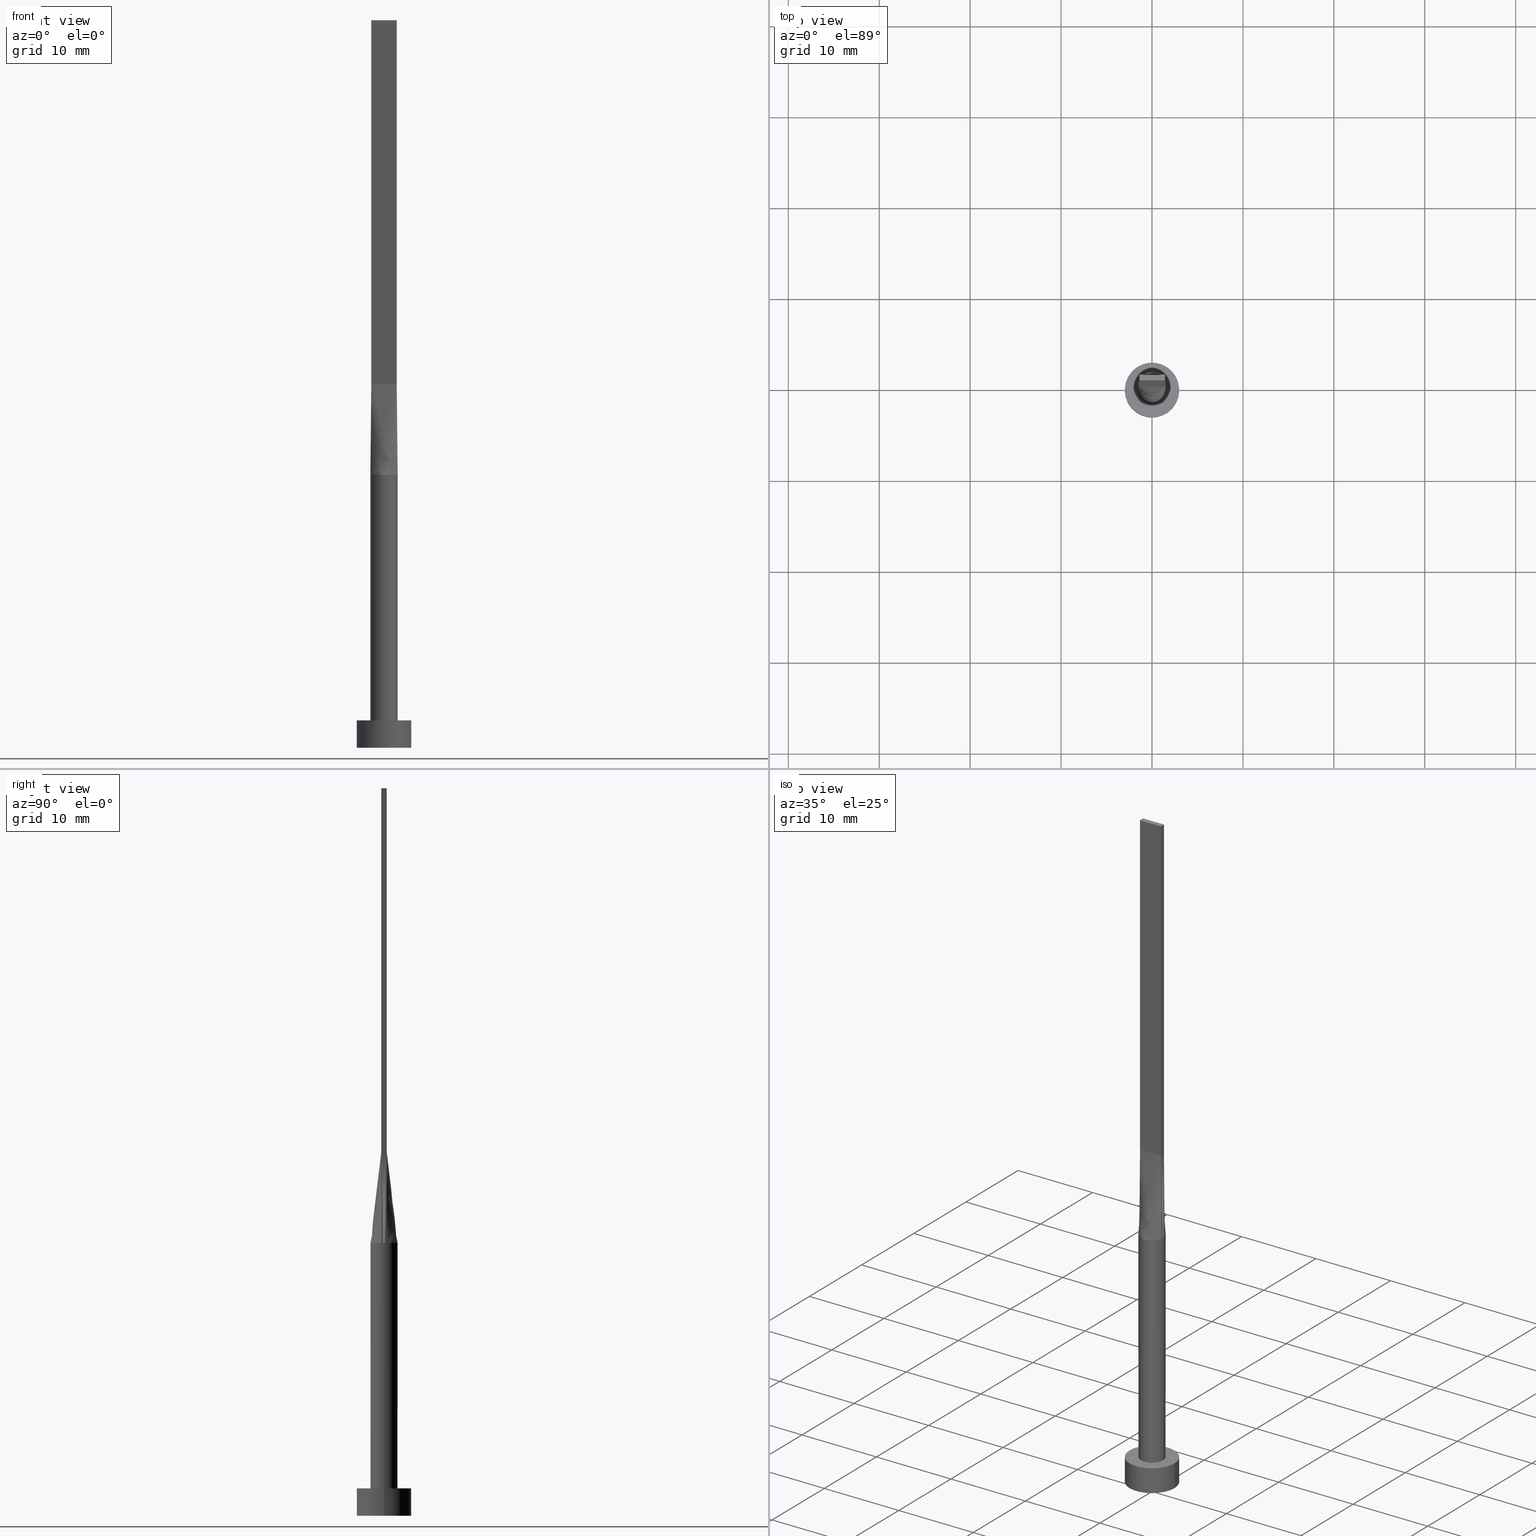
[diagram: canonical four-view strip — front | top / right | iso, engineering-drawing reading convention]
A machine part, canonical four-view strip (front | top / right | iso — engineering-drawing reading convention). The complete STEP part file that produces these views, byte-faithful:
ISO-10303-21;
HEADER;
FILE_DESCRIPTION (( 'STEP AP203' ),
    '1' );
FILE_NAME ('b24c.STEP',
    '2026-02-12T09:00:48',
    ( '' ),
    ( '' ),
    'SwSTEP 2.0',
    'SolidWorks 2019',
    '' );
FILE_SCHEMA (( 'CONFIG_CONTROL_DESIGN' ));
ENDSEC;

DATA;
#1 = CIRCLE ( 'NONE', #76, 1.500000000000000222 ) ;
#2 = CARTESIAN_POINT ( 'NONE',  ( 1.499815225192203672, 3.473831651285826596E-16, 30.00000000000000000 ) ) ;
#3 = LINE ( 'NONE', #541, #188 ) ;
#4 = APPROVAL ( #505, 'NEUR�EN�' ) ;
#5 = PERSON_AND_ORGANIZATION ( #29, #129 ) ;
#6 = CARTESIAN_POINT ( 'NONE',  ( -1.399999999999999689, 0.3000000000000002109, 80.00000000000000000 ) ) ;
#7 = CYLINDRICAL_SURFACE ( 'NONE', #391, 1.500000000000000222 ) ;
#8 = VERTEX_POINT ( 'NONE', #163 ) ;
#9 = DATE_AND_TIME ( #460, #92 ) ;
#10 = CARTESIAN_POINT ( 'NONE',  ( 1.500000000000000222, 1.836970198721030181E-16, 30.00000000000000000 ) ) ;
#11 = CARTESIAN_POINT ( 'NONE',  ( 0.4035854070682468042, -1.457676878506885210, 30.00000000000000355 ) ) ;
#12 = DIRECTION ( 'NONE',  ( 0.000000000000000000, 0.000000000000000000, 1.000000000000000000 ) ) ;
#13 = ORIENTED_EDGE ( 'NONE', *, *, #57, .T. ) ;
#14 = CIRCLE ( 'NONE', #216, 1.500000000000000222 ) ;
#15 = APPROVAL_PERSON_ORGANIZATION ( #185, #407, #277 ) ;
#16 = FACE_OUTER_BOUND ( 'NONE', #404, .T. ) ;
#17 = CARTESIAN_POINT ( 'NONE',  ( 0.1166666666666671959, -0.2999999999999997113, 39.99999999999999289 ) ) ;
#18 = DIRECTION ( 'NONE',  ( -1.000000000000000000, 0.000000000000000000, 0.000000000000000000 ) ) ;
#19 = ORIENTED_EDGE ( 'NONE', *, *, #304, .T. ) ;
#20 = ADVANCED_FACE ( 'NONE', ( #118 ), #46, .T. ) ;
#21 = DIRECTION ( 'NONE',  ( 0.000000000000000000, 0.000000000000000000, 1.000000000000000000 ) ) ;
#22 = VERTEX_POINT ( 'NONE', #295 ) ;
#23 = ORIENTED_EDGE ( 'NONE', *, *, #432, .T. ) ;
#24 = CARTESIAN_POINT ( 'NONE',  ( 1.283333333333333437, 0.3000000000000002109, 40.00000000000000000 ) ) ;
#25 = CC_DESIGN_PERSON_AND_ORGANIZATION_ASSIGNMENT ( #452, #45, ( #256 ) ) ;
#26 = CARTESIAN_POINT ( 'NONE',  ( 1.466825456746648992, 0.3143198820638501978, 30.00000000000000000 ) ) ;
#27 = CARTESIAN_POINT ( 'NONE',  ( -1.399999999999999689, 0.3000000000000002109, 40.00000000000000000 ) ) ;
#28 = ADVANCED_FACE ( 'NONE', ( #326 ), #504, .T. ) ;
#29 = PERSON ( 'NEUR�EN�', 'NEUR�EN�', 'NEUR�EN�', ('NEUR�EN�'), ('NEUR�EN�'), ('NEUR�EN�') ) ;
#30 = VERTEX_POINT ( 'NONE', #244 ) ;
#31 = CARTESIAN_POINT ( 'NONE',  ( 1.261673556793541540, 0.8246322331683844098, 29.99999999999998579 ) ) ;
#32 = AXIS2_PLACEMENT_3D ( 'NONE', #175, #485, #342 ) ;
#33 = ADVANCED_FACE ( 'NONE', ( #398 ), #525, .F. ) ;
#34 = FACE_OUTER_BOUND ( 'NONE', #125, .T. ) ;
#35 = ORIENTED_EDGE ( 'NONE', *, *, #258, .F. ) ;
#36 = CARTESIAN_POINT ( 'NONE',  ( 1.398339371956842880, 0.5625704264602660043, 29.99999999999999645 ) ) ;
#37 = DIRECTION ( 'NONE',  ( -0.000000000000000000, -0.000000000000000000, -1.000000000000000000 ) ) ;
#38 = ORIENTED_EDGE ( 'NONE', *, *, #383, .F. ) ;
#39 = CARTESIAN_POINT ( 'NONE',  ( 0.7614511870148451544, 1.306864626778804883, 30.00000000000000711 ) ) ;
#40 = ORIENTED_EDGE ( 'NONE', *, *, #214, .F. ) ;
#41 =( GEOMETRIC_REPRESENTATION_CONTEXT ( 3 ) GLOBAL_UNCERTAINTY_ASSIGNED_CONTEXT ( ( #422 ) ) GLOBAL_UNIT_ASSIGNED_CONTEXT ( ( #419, #372, #406 ) ) REPRESENTATION_CONTEXT ( 'NONE', 'WORKASPACE' ) );
#42 = PRODUCT_RELATED_PRODUCT_CATEGORY ( 'detail', '', ( #357 ) ) ;
#43 = EDGE_LOOP ( 'NONE', ( #205, #306, #133, #379, #442, #116 ) ) ;
#44 = CARTESIAN_POINT ( 'NONE',  ( 0.000000000000000000, 0.000000000000000000, 0.000000000000000000 ) ) ;
#45 = PERSON_AND_ORGANIZATION_ROLE ( 'classification_officer' ) ;
#46 = B_SPLINE_SURFACE_WITH_KNOTS ( 'NONE', 3, 1, ( 
 ( #478, #428 ),
 ( #339, #516 ),
 ( #299, #292 ),
 ( #159, #148 ),
 ( #470, #335 ),
 ( #66, #113 ) ),
 .UNSPECIFIED., .F., .F., .F.,
 ( 4, 2, 4 ),
 ( 2, 2 ),
 ( 0.000000000000000000, 0.5000000000000000000, 1.000000000000000000 ),
 ( 0.000000000000000000, 1.000000000000000000 ),
 .UNSPECIFIED. ) ;
#47 = MANIFOLD_SOLID_BREP ( 'P�idat vysunut�m5', #309 ) ;
#48 = CARTESIAN_POINT ( 'NONE',  ( 0.000000000000000000, 0.000000000000000000, 30.00000000000000000 ) ) ;
#49 = ADVANCED_FACE ( 'NONE', ( #352 ), #441, .F. ) ;
#50 = DIRECTION ( 'NONE',  ( 0.000000000000000000, 0.000000000000000000, 1.000000000000000000 ) ) ;
#51 = CC_DESIGN_SECURITY_CLASSIFICATION ( #256, ( #149 ) ) ;
#52 = DESIGN_CONTEXT ( 'detailed design', #94, 'design' ) ;
#53 = CALENDAR_DATE ( 2026, 12, 2 ) ;
#54 = AXIS2_PLACEMENT_3D ( 'NONE', #106, #287, #465 ) ;
#55 = DIRECTION ( 'NONE',  ( -0.006670206908340766024, -0.001429330051787238700, 0.9999767324070110153 ) ) ;
#56 = DIRECTION ( 'NONE',  ( -1.000000000000000000, 0.000000000000000000, 0.000000000000000000 ) ) ;
#57 = EDGE_CURVE ( 'NONE', #417, #224, #576, .T. ) ;
#58 = APPROVAL_ROLE ( '' ) ;
#59 = CARTESIAN_POINT ( 'NONE',  ( -1.283333333333333215, -0.2999999999999996003, 39.99999999999999289 ) ) ;
#60 = LINE ( 'NONE', #323, #114 ) ;
#61 = DIRECTION ( 'NONE',  ( 1.000000000000000000, 0.000000000000000000, 0.000000000000000000 ) ) ;
#62 = ORIENTED_EDGE ( 'NONE', *, *, #80, .T. ) ;
#63 = DIRECTION ( 'NONE',  ( 0.000000000000000000, 0.000000000000000000, 1.000000000000000000 ) ) ;
#64 = LINE ( 'NONE', #285, #235 ) ;
#65 = DIRECTION ( 'NONE',  ( 1.000000000000000000, 0.000000000000000000, 0.000000000000000000 ) ) ;
#66 = CARTESIAN_POINT ( 'NONE',  ( -1.466703621116114409, -0.3142936330963096436, 30.00000000000000000 ) ) ;
#67 = CARTESIAN_POINT ( 'NONE',  ( 1.433351810558057160, 0.3071468165481550106, 35.00000000000000000 ) ) ;
#68 = CARTESIAN_POINT ( 'NONE',  ( 1.399999999999999911, -0.2999999999999997669, 40.00000000000000000 ) ) ;
#69 = VECTOR ( 'NONE', #488, 1000.000000000000000 ) ;
#70 = VECTOR ( 'NONE', #411, 1000.000000000000000 ) ;
#71 = ORIENTED_EDGE ( 'NONE', *, *, #117, .T. ) ;
#72 = CARTESIAN_POINT ( 'NONE',  ( -0.1166666666666661550, -0.2999999999999997669, 40.00000000000000000 ) ) ;
#73 = VERTEX_POINT ( 'NONE', #269 ) ;
#74 = ADVANCED_FACE ( 'NONE', ( #310, #75 ), #267, .T. ) ;
#75 = FACE_OUTER_BOUND ( 'NONE', #526, .T. ) ;
#76 = AXIS2_PLACEMENT_3D ( 'NONE', #291, #286, #65 ) ;
#77 = CARTESIAN_POINT ( 'NONE',  ( -1.261673556793542872, 0.8246322331683846318, 30.00000000000000711 ) ) ;
#78 = CARTESIAN_POINT ( 'NONE',  ( -0.9173979595380679086, 1.199399801402030397, 30.00000000000000000 ) ) ;
#79 = CARTESIAN_POINT ( 'NONE',  ( -0.8166666666666656527, 0.3000000000000002665, 40.00000000000000000 ) ) ;
#80 = EDGE_CURVE ( 'NONE', #8, #73, #444, .T. ) ;
#81 = DIRECTION ( 'NONE',  ( 0.000000000000000000, -1.000000000000000000, 0.000000000000000000 ) ) ;
#82 = EDGE_LOOP ( 'NONE', ( #249, #399, #549, #134 ) ) ;
#83 = CC_DESIGN_APPROVAL ( #131, ( #149 ) ) ;
#84 = DIRECTION ( 'NONE',  ( 0.000000000000000000, 0.000000000000000000, 1.000000000000000000 ) ) ;
#85 = DIRECTION ( 'NONE',  ( -1.000000000000000000, 5.808225924029488744E-17, 0.000000000000000000 ) ) ;
#86 = ORIENTED_EDGE ( 'NONE', *, *, #57, .F. ) ;
#87 = APPLICATION_CONTEXT ( 'configuration controlled 3d designs of mechanical parts and assemblies' ) ;
#88 = CARTESIAN_POINT ( 'NONE',  ( 1.441093865018553410, 0.4338058282182615244, 30.00000000000000711 ) ) ;
#89 = VERTEX_POINT ( 'NONE', #170 ) ;
#90 = ORIENTED_EDGE ( 'NONE', *, *, #258, .T. ) ;
#91 = CARTESIAN_POINT ( 'NONE',  ( 0.7614511870148451544, -1.306864626778804439, 30.00000000000001066 ) ) ;
#92 = LOCAL_TIME ( 10, 0, 48.00000000000000000, #499 ) ;
#93 = PERSON_AND_ORGANIZATION_ROLE ( 'design_supplier' ) ;
#94 = APPLICATION_CONTEXT ( 'configuration controlled 3d designs of mechanical parts and assemblies' ) ;
#95 = ADVANCED_FACE ( 'NONE', ( #34 ), #536, .T. ) ;
#96 = APPROVAL_STATUS ( 'not_yet_approved' ) ;
#97 = DIRECTION ( 'NONE',  ( 0.000000000000000000, 0.000000000000000000, 1.000000000000000000 ) ) ;
#98 = APPROVAL_ROLE ( '' ) ;
#99 = LINE ( 'NONE', #107, #167 ) ;
#100 = CARTESIAN_POINT ( 'NONE',  ( 1.466854622690809462, -0.3143260906982852099, 30.00000000000000000 ) ) ;
#101 = AXIS2_PLACEMENT_3D ( 'NONE', #467, #63, #156 ) ;
#102 = APPROVAL_STATUS ( 'not_yet_approved' ) ;
#103 = FACE_OUTER_BOUND ( 'NONE', #183, .T. ) ;
#104 = CARTESIAN_POINT ( 'NONE',  ( 0.9333333333333337922, -0.2999999999999997113, 39.99999999999999289 ) ) ;
#105 = CARTESIAN_POINT ( 'NONE',  ( -1.399999999999999689, 0.3000000000000002109, 40.00000000000000000 ) ) ;
#106 = CARTESIAN_POINT ( 'NONE',  ( 0.000000000000000000, 0.000000000000000000, 30.00000000000000000 ) ) ;
#107 = CARTESIAN_POINT ( 'NONE',  ( -1.433351810558057160, 0.3071468165481554546, 35.00000000000000000 ) ) ;
#108 = CARTESIAN_POINT ( 'NONE',  ( 1.399999999999999911, -0.2999999999999997669, 40.00000000000000000 ) ) ;
#109 = DIRECTION ( 'NONE',  ( 1.000000000000000000, 0.000000000000000000, 0.000000000000000000 ) ) ;
#110 = EDGE_LOOP ( 'NONE', ( #330, #271 ) ) ;
#111 = LINE ( 'NONE', #414, #409 ) ;
#112 = CARTESIAN_POINT ( 'NONE',  ( -0.2333333333333328374, -0.2999999999999997113, 39.99999999999999289 ) ) ;
#113 = CARTESIAN_POINT ( 'NONE',  ( -1.399999999999999911, -0.2999999999999996558, 40.00000000000000000 ) ) ;
#114 = VECTOR ( 'NONE', #502, 1000.000000000000000 ) ;
#115 = CARTESIAN_POINT ( 'NONE',  ( 0.8166666666666669849, -0.2999999999999997113, 39.99999999999999289 ) ) ;
#116 = ORIENTED_EDGE ( 'NONE', *, *, #187, .F. ) ;
#117 = EDGE_CURVE ( 'NONE', #421, #160, #265, .T. ) ;
#118 = FACE_OUTER_BOUND ( 'NONE', #220, .T. ) ;
#119 = B_SPLINE_CURVE_WITH_KNOTS ( 'NONE', 3,
 ( #26, #168, #36, #31, #122, #345, #397, #218, #481, #572, #212, #213, #78, #259, #437, #520, #568, #172 ),
 .UNSPECIFIED., .F., .F.,
 ( 4, 2, 2, 2, 2, 2, 2, 2, 4 ),
 ( 0.000000000000000000, 0.1249999999999999445, 0.2499999999999998890, 0.3749999999999998890, 0.4999999999999998890, 0.6249999999999998890, 0.7500000000000000000, 0.8749999999999998890, 1.000000000000000000 ),
 .UNSPECIFIED. ) ;
#120 = CARTESIAN_POINT ( 'NONE',  ( -1.441093865018553410, 0.4338058282182611913, 29.99999999999999289 ) ) ;
#121 = CIRCLE ( 'NONE', #440, 3.000000000000000444 ) ;
#122 = CARTESIAN_POINT ( 'NONE',  ( 1.167251067653077401, 0.9579686032593092149, 30.00000000000000355 ) ) ;
#123 = DIRECTION ( 'NONE',  ( -3.614007241618349264E-16, -1.000000000000000000, 0.000000000000000000 ) ) ;
#124 = CARTESIAN_POINT ( 'NONE',  ( -1.399999999999999911, -0.2999999999999996003, 80.00000000000000000 ) ) ;
#125 = EDGE_LOOP ( 'NONE', ( #382, #268, #35, #38 ) ) ;
#126 = DIRECTION ( 'NONE',  ( 0.000000000000000000, 0.000000000000000000, 1.000000000000000000 ) ) ;
#127 = DIRECTION ( 'NONE',  ( 1.000000000000000000, 0.000000000000000000, -0.000000000000000000 ) ) ;
#128 = ORIENTED_EDGE ( 'NONE', *, *, #432, .F. ) ;
#129 = ORGANIZATION ( 'NEUR�EN�', 'NEUR�EN�', '' ) ;
#130 = AXIS2_PLACEMENT_3D ( 'NONE', #529, #81, #566 ) ;
#131 = APPROVAL ( #102, 'NEUR�EN�' ) ;
#132 = CARTESIAN_POINT ( 'NONE',  ( -1.500000000000000222, 0.000000000000000000, 30.00000000000000000 ) ) ;
#133 = ORIENTED_EDGE ( 'NONE', *, *, #349, .T. ) ;
#134 = ORIENTED_EDGE ( 'NONE', *, *, #354, .F. ) ;
#135 = LOCAL_TIME ( 10, 0, 48.00000000000000000, #232 ) ;
#136 = EDGE_CURVE ( 'NONE', #171, #174, #275, .T. ) ;
#137 = AXIS2_PLACEMENT_3D ( 'NONE', #443, #84, #482 ) ;
#138 = VECTOR ( 'NONE', #562, 1000.000000000000000 ) ;
#139 = PERSON_AND_ORGANIZATION ( #29, #129 ) ;
#140 = FACE_OUTER_BOUND ( 'NONE', #559, .T. ) ;
#141 = APPROVAL_DATE_TIME ( #144, #4 ) ;
#142 = DIRECTION ( 'NONE',  ( -0.000000000000000000, -0.000000000000000000, -1.000000000000000000 ) ) ;
#143 = CARTESIAN_POINT ( 'NONE',  ( 1.399999999999999689, 0.3000000000000002109, 80.00000000000000000 ) ) ;
#144 = DATE_AND_TIME ( #535, #308 ) ;
#145 = FACE_OUTER_BOUND ( 'NONE', #567, .T. ) ;
#146 = DIRECTION ( 'NONE',  ( 1.000000000000000000, -3.614007241618349264E-16, 0.000000000000000000 ) ) ;
#147 = CARTESIAN_POINT ( 'NONE',  ( 0.000000000000000000, 0.000000000000000000, 80.00000000000000000 ) ) ;
#148 = CARTESIAN_POINT ( 'NONE',  ( -1.399999999999999689, -0.09999999999999960310, 39.99999999999999289 ) ) ;
#149 = PRODUCT_DEFINITION_FORMATION_WITH_SPECIFIED_SOURCE ( 'LIBOVOLN�', '', #357, .NOT_KNOWN. ) ;
#150 = APPLICATION_PROTOCOL_DEFINITION ( 'international standard', 'config_control_design', 1994, #94 ) ;
#151 = CARTESIAN_POINT ( 'NONE',  ( 1.499630450384406899, -0.1059273043530333108, 30.00000000000000000 ) ) ;
#152 = CARTESIAN_POINT ( 'NONE',  ( 0.5833333333333337034, -0.2999999999999997113, 39.99999999999999289 ) ) ;
#153 = EDGE_CURVE ( 'NONE', #356, #30, #435, .T. ) ;
#154 = CARTESIAN_POINT ( 'NONE',  ( 0.000000000000000000, 0.000000000000000000, 0.000000000000000000 ) ) ;
#155 = ORIENTED_EDGE ( 'NONE', *, *, #181, .F. ) ;
#156 = DIRECTION ( 'NONE',  ( 1.000000000000000000, 0.000000000000000000, -0.000000000000000000 ) ) ;
#157 = CARTESIAN_POINT ( 'NONE',  ( -1.166666666666666297, -0.2999999999999996003, 39.99999999999999289 ) ) ;
#158 = PLANE ( 'NONE',  #389 ) ;
#159 = CARTESIAN_POINT ( 'NONE',  ( -1.499630450384406899, -0.1059273043530328529, 30.00000000000000000 ) ) ;
#160 = VERTEX_POINT ( 'NONE', #303 ) ;
#161 = EDGE_CURVE ( 'NONE', #160, #530, #215, .T. ) ;
#162 = VECTOR ( 'NONE', #373, 1000.000000000000000 ) ;
#163 = CARTESIAN_POINT ( 'NONE',  ( -1.499815225192203672, -3.718617114388451945E-16, 30.00000000000000000 ) ) ;
#164 = EDGE_CURVE ( 'NONE', #73, #89, #475, .T. ) ;
#165 = CARTESIAN_POINT ( 'NONE',  ( -1.398339371956843102, 0.5625704264602656712, 29.99999999999999289 ) ) ;
#166 = CARTESIAN_POINT ( 'NONE',  ( 3.000000000000000444, 3.673940397442060361E-16, 3.000000000000000000 ) ) ;
#167 = VECTOR ( 'NONE', #251, 1000.000000000000114 ) ;
#168 = CARTESIAN_POINT ( 'NONE',  ( 1.441093865018553410, 0.4338058282182615244, 30.00000000000000711 ) ) ;
#169 = ADVANCED_BREP_SHAPE_REPRESENTATION ( 'b24c', ( #47, #343 ), #41 ) ;
#170 = CARTESIAN_POINT ( 'NONE',  ( 1.500000000000000222, 1.836970198721030181E-16, 3.000000000000000000 ) ) ;
#171 = VERTEX_POINT ( 'NONE', #439 ) ;
#172 = CARTESIAN_POINT ( 'NONE',  ( -1.466842056764351865, 0.3143233427268645186, 30.00000000000000000 ) ) ;
#173 = CARTESIAN_POINT ( 'NONE',  ( 0.4035854070682468042, 1.457676878506885654, 30.00000000000000000 ) ) ;
#174 = VERTEX_POINT ( 'NONE', #166 ) ;
#175 = CARTESIAN_POINT ( 'NONE',  ( 0.000000000000000000, 0.000000000000000000, 3.000000000000000000 ) ) ;
#176 = CC_DESIGN_PERSON_AND_ORGANIZATION_ASSIGNMENT ( #319, #283, ( #357 ) ) ;
#177 = CARTESIAN_POINT ( 'NONE',  ( -1.399999999999999911, -0.2999999999999996003, 80.00000000000000000 ) ) ;
#178 = ORIENTED_EDGE ( 'NONE', *, *, #318, .T. ) ;
#179 = AXIS2_PLACEMENT_3D ( 'NONE', #497, #280, #458 ) ;
#180 = AXIS2_PLACEMENT_3D ( 'NONE', #387, #301, #260 ) ;
#181 = EDGE_CURVE ( 'NONE', #224, #200, #480, .T. ) ;
#182 = CARTESIAN_POINT ( 'NONE',  ( 0.2021039475585061640, 1.500000000000000222, 30.00000000000000711 ) ) ;
#183 = EDGE_LOOP ( 'NONE', ( #353, #416 ) ) ;
#184 = CARTESIAN_POINT ( 'NONE',  ( 0.2333333333333338366, -0.2999999999999997113, 39.99999999999999289 ) ) ;
#185 = PERSON_AND_ORGANIZATION ( #29, #129 ) ;
#186 = ADVANCED_FACE ( 'NONE', ( #257 ), #307, .T. ) ;
#187 = EDGE_CURVE ( 'NONE', #30, #22, #119, .T. ) ;
#188 = VECTOR ( 'NONE', #418, 1000.000000000000000 ) ;
#189 = APPLICATION_PROTOCOL_DEFINITION ( 'international standard', 'config_control_design', 1994, #87 ) ;
#190 = CARTESIAN_POINT ( 'NONE',  ( 1.488654840628309328, -0.2118546087060664274, 30.00000000000000000 ) ) ;
#191 = LINE ( 'NONE', #508, #162 ) ;
#192 = PERSON_AND_ORGANIZATION_ROLE ( 'creator' ) ;
#193 = CARTESIAN_POINT ( 'NONE',  ( 1.399999999999999689, 0.3000000000000002109, 80.00000000000000000 ) ) ;
#194 = LINE ( 'NONE', #105, #70 ) ;
#195 = ORIENTED_EDGE ( 'NONE', *, *, #392, .F. ) ;
#196 = CC_DESIGN_DATE_AND_TIME_ASSIGNMENT ( #9, #466, ( #238 ) ) ;
#197 = DIRECTION ( 'NONE',  ( 1.000000000000000000, 0.000000000000000000, 0.000000000000000000 ) ) ;
#198 = CARTESIAN_POINT ( 'NONE',  ( -1.398339371956842880, -0.5625704264602655602, 29.99999999999999289 ) ) ;
#199 = CARTESIAN_POINT ( 'NONE',  ( 1.399999999999999911, -0.2999999999999997669, 80.00000000000000000 ) ) ;
#200 = VERTEX_POINT ( 'NONE', #143 ) ;
#201 = CARTESIAN_POINT ( 'NONE',  ( 1.399999999999999911, -0.2999999999999997669, 40.00000000000000000 ) ) ;
#202 = CARTESIAN_POINT ( 'NONE',  ( -0.5833333333333329263, -0.2999999999999996558, 39.99999999999999289 ) ) ;
#203 = CARTESIAN_POINT ( 'NONE',  ( 0.000000000000000000, 0.000000000000000000, 3.000000000000000000 ) ) ;
#204 = SHAPE_DEFINITION_REPRESENTATION ( #274, #169 ) ;
#205 = ORIENTED_EDGE ( 'NONE', *, *, #153, .F. ) ;
#206 = PLANE ( 'NONE',  #449 ) ;
#207 = ORIENTED_EDGE ( 'NONE', *, *, #281, .T. ) ;
#208 = VERTEX_POINT ( 'NONE', #100 ) ;
#209 = VECTOR ( 'NONE', #580, 1000.000000000000114 ) ;
#210 = AXIS2_PLACEMENT_3D ( 'NONE', #395, #490, #127 ) ;
#211 = CARTESIAN_POINT ( 'NONE',  ( 1.261673556793541540, 0.8246322331683844098, 29.99999999999998579 ) ) ;
#212 = CARTESIAN_POINT ( 'NONE',  ( -0.4035854070682471928, 1.457676878506885432, 30.00000000000000711 ) ) ;
#213 = CARTESIAN_POINT ( 'NONE',  ( -0.7614511870148460426, 1.306864626778804661, 30.00000000000001776 ) ) ;
#214 = EDGE_CURVE ( 'NONE', #200, #474, #469, .T. ) ;
#215 = LINE ( 'NONE', #517, #138 ) ;
#216 = AXIS2_PLACEMENT_3D ( 'NONE', #234, #97, #61 ) ;
#217 = ORIENTED_EDGE ( 'NONE', *, *, #300, .F. ) ;
#218 = CARTESIAN_POINT ( 'NONE',  ( 0.4035854070682468042, 1.457676878506885654, 30.00000000000000000 ) ) ;
#219 = CARTESIAN_POINT ( 'NONE',  ( 0.9333333333333340143, 0.3000000000000002109, 39.99999999999999289 ) ) ;
#220 = EDGE_LOOP ( 'NONE', ( #491, #431, #381, #545, #195 ) ) ;
#221 = EDGE_CURVE ( 'NONE', #228, #522, #250, .T. ) ;
#222 = CARTESIAN_POINT ( 'NONE',  ( -1.167251067653078289, 0.9579686032593087708, 30.00000000000001776 ) ) ;
#223 = CARTESIAN_POINT ( 'NONE',  ( 1.399999999999999689, 0.3000000000000002109, 40.00000000000000000 ) ) ;
#224 = VERTEX_POINT ( 'NONE', #243 ) ;
#225 = CARTESIAN_POINT ( 'NONE',  ( 1.466703621116114409, 0.3142936330963102542, 30.00000000000000000 ) ) ;
#226 = ORIENTED_EDGE ( 'NONE', *, *, #164, .T. ) ;
#227 = VECTOR ( 'NONE', #363, 1000.000000000000000 ) ;
#228 = VERTEX_POINT ( 'NONE', #427 ) ;
#229 = LINE ( 'NONE', #332, #209 ) ;
#230 = ADVANCED_FACE ( 'NONE', ( #140 ), #7, .T. ) ;
#231 = COORDINATED_UNIVERSAL_TIME_OFFSET ( 1, 0, .AHEAD. ) ;
#232 = COORDINATED_UNIVERSAL_TIME_OFFSET ( 1, 0, .AHEAD. ) ;
#233 = DIRECTION ( 'NONE',  ( 1.000000000000000000, 3.552713678800500929E-15, 0.000000000000000000 ) ) ;
#234 = CARTESIAN_POINT ( 'NONE',  ( 0.000000000000000000, 0.000000000000000000, 3.000000000000000000 ) ) ;
#235 = VECTOR ( 'NONE', #405, 1000.000000000000000 ) ;
#236 = CARTESIAN_POINT ( 'NONE',  ( 1.399999999999999689, -0.09999999999999985290, 39.99999999999999289 ) ) ;
#237 = DIRECTION ( 'NONE',  ( 1.000000000000000000, 0.000000000000000000, 0.000000000000000000 ) ) ;
#238 = PRODUCT_DEFINITION ( 'NEZN�M�', '', #149, #52 ) ;
#239 = ORIENTED_EDGE ( 'NONE', *, *, #556, .T. ) ;
#240 = SECURITY_CLASSIFICATION_LEVEL ( 'unclassified' ) ;
#241 = CARTESIAN_POINT ( 'NONE',  ( 1.466703621116114409, -0.3142936330963101987, 30.00000000000000000 ) ) ;
#242 = CARTESIAN_POINT ( 'NONE',  ( -1.261673556793542206, -0.8246322331683838547, 29.99999999999998934 ) ) ;
#243 = CARTESIAN_POINT ( 'NONE',  ( 1.399999999999999911, -0.2999999999999997669, 80.00000000000000000 ) ) ;
#244 = CARTESIAN_POINT ( 'NONE',  ( 1.466825456746648992, 0.3143198820638501978, 30.00000000000000000 ) ) ;
#245 = DIRECTION ( 'NONE',  ( -0.006670206908340743472, -0.001429330051787282068, -0.9999767324070110153 ) ) ;
#246 = DIRECTION ( 'NONE',  ( 1.000000000000000000, 0.000000000000000000, 0.000000000000000000 ) ) ;
#247 = CARTESIAN_POINT ( 'NONE',  ( 1.399999999999999689, 0.3000000000000002109, 80.00000000000000000 ) ) ;
#248 = VECTOR ( 'NONE', #511, 1000.000000000000000 ) ;
#249 = ORIENTED_EDGE ( 'NONE', *, *, #318, .F. ) ;
#250 = CIRCLE ( 'NONE', #565, 3.000000000000000444 ) ;
#251 = DIRECTION ( 'NONE',  ( 0.006670206908340743472, -0.001429330051787325653, 0.9999767324070110153 ) ) ;
#252 = CARTESIAN_POINT ( 'NONE',  ( -0.4035854070682473038, -1.457676878506884988, 30.00000000000001066 ) ) ;
#253 = ORIENTED_EDGE ( 'NONE', *, *, #136, .T. ) ;
#254 = ORIENTED_EDGE ( 'NONE', *, *, #281, .F. ) ;
#255 = CARTESIAN_POINT ( 'NONE',  ( 1.166666666666666963, 0.3000000000000002109, 40.00000000000000000 ) ) ;
#256 = SECURITY_CLASSIFICATION ( '', '', #240 ) ;
#257 = FACE_OUTER_BOUND ( 'NONE', #570, .T. ) ;
#258 = EDGE_CURVE ( 'NONE', #270, #421, #194, .T. ) ;
#259 = CARTESIAN_POINT ( 'NONE',  ( -1.167251067653078289, 0.9579686032593087708, 30.00000000000001776 ) ) ;
#260 = DIRECTION ( 'NONE',  ( 1.000000000000000000, 0.000000000000000000, 0.000000000000000000 ) ) ;
#261 = VECTOR ( 'NONE', #142, 1000.000000000000000 ) ;
#262 = ADVANCED_FACE ( 'NONE', ( #420 ), #552, .F. ) ;
#263 = CARTESIAN_POINT ( 'NONE',  ( -0.4666666666666651198, 0.3000000000000001554, 39.99999999999999289 ) ) ;
#264 = EDGE_LOOP ( 'NONE', ( #71, #338, #477, #207 ) ) ;
#265 = LINE ( 'NONE', #523, #528 ) ;
#266 = EDGE_CURVE ( 'NONE', #224, #530, #191, .T. ) ;
#267 = PLANE ( 'NONE',  #210 ) ;
#268 = ORIENTED_EDGE ( 'NONE', *, *, #392, .T. ) ;
#269 = CARTESIAN_POINT ( 'NONE',  ( -1.500000000000000222, 0.000000000000000000, 3.000000000000000000 ) ) ;
#270 = VERTEX_POINT ( 'NONE', #498 ) ;
#271 = ORIENTED_EDGE ( 'NONE', *, *, #349, .F. ) ;
#272 = LOCAL_TIME ( 10, 0, 48.00000000000000000, #231 ) ;
#273 = CARTESIAN_POINT ( 'NONE',  ( 1.166666666666666963, -0.2999999999999997113, 39.99999999999999289 ) ) ;
#274 = PRODUCT_DEFINITION_SHAPE ( 'NONE', 'NONE',  #238 ) ;
#275 = CIRCLE ( 'NONE', #137, 3.000000000000000444 ) ;
#276 = MECHANICAL_CONTEXT ( 'NONE', #87, 'mechanical' ) ;
#277 = APPROVAL_ROLE ( '' ) ;
#278 = CARTESIAN_POINT ( 'NONE',  ( -1.466837926445876628, -0.3143226152917824034, 30.00000000000000000 ) ) ;
#279 = PERSON_AND_ORGANIZATION_ROLE ( 'creator' ) ;
#280 = DIRECTION ( 'NONE',  ( -0.000000000000000000, -0.000000000000000000, -1.000000000000000000 ) ) ;
#281 = EDGE_CURVE ( 'NONE', #474, #421, #548, .T. ) ;
#282 = CARTESIAN_POINT ( 'NONE',  ( -1.399999999999999689, 0.3000000000000002109, 80.00000000000000000 ) ) ;
#283 = PERSON_AND_ORGANIZATION_ROLE ( 'design_owner' ) ;
#284 = CARTESIAN_POINT ( 'NONE',  ( -1.399999999999999911, -0.2999999999999996003, 40.00000000000000000 ) ) ;
#285 = CARTESIAN_POINT ( 'NONE',  ( 1.399999999999999689, 0.3000000000000002109, 40.00000000000000000 ) ) ;
#286 = DIRECTION ( 'NONE',  ( 0.000000000000000000, 0.000000000000000000, 1.000000000000000000 ) ) ;
#287 = DIRECTION ( 'NONE',  ( -0.000000000000000000, -0.000000000000000000, -1.000000000000000000 ) ) ;
#288 = PERSON_AND_ORGANIZATION ( #29, #129 ) ;
#289 = PLANE ( 'NONE',  #101 ) ;
#290 = CARTESIAN_POINT ( 'NONE',  ( -0.8166666666666663188, -0.2999999999999996003, 39.99999999999999289 ) ) ;
#291 = CARTESIAN_POINT ( 'NONE',  ( 0.000000000000000000, 0.000000000000000000, 30.00000000000000000 ) ) ;
#292 = CARTESIAN_POINT ( 'NONE',  ( -1.399999999999999689, 0.1000000000000003386, 39.99999999999999289 ) ) ;
#293 = CARTESIAN_POINT ( 'NONE',  ( 1.399999999999999689, 0.3000000000000002109, 40.00000000000000000 ) ) ;
#294 = CARTESIAN_POINT ( 'NONE',  ( 1.283333333333333437, -0.2999999999999997113, 39.99999999999999289 ) ) ;
#295 = CARTESIAN_POINT ( 'NONE',  ( -1.466842056764351865, 0.3143233427268645186, 30.00000000000000000 ) ) ;
#296 = EDGE_CURVE ( 'NONE', #22, #8, #563, .T. ) ;
#297 = AXIS2_PLACEMENT_3D ( 'NONE', #564, #126, #394 ) ;
#298 = ORIENTED_EDGE ( 'NONE', *, *, #455, .T. ) ;
#299 = CARTESIAN_POINT ( 'NONE',  ( -1.499630450384406899, 0.1059273043530332276, 30.00000000000000000 ) ) ;
#300 = EDGE_CURVE ( 'NONE', #174, #228, #415, .T. ) ;
#301 = DIRECTION ( 'NONE',  ( 0.000000000000000000, 0.000000000000000000, 1.000000000000000000 ) ) ;
#302 = CARTESIAN_POINT ( 'NONE',  ( 1.399999999999999911, -0.2999999999999997669, 80.00000000000000000 ) ) ;
#303 = CARTESIAN_POINT ( 'NONE',  ( -1.399999999999999911, -0.2999999999999996003, 40.00000000000000000 ) ) ;
#304 = EDGE_CURVE ( 'NONE', #351, #208, #1, .T. ) ;
#305 = CARTESIAN_POINT ( 'NONE',  ( 0.5833333333333345916, 0.3000000000000001554, 39.99999999999999289 ) ) ;
#306 = ORIENTED_EDGE ( 'NONE', *, *, #438, .T. ) ;
#307 = CYLINDRICAL_SURFACE ( 'NONE', #32, 3.000000000000000444 ) ;
#308 = LOCAL_TIME ( 10, 0, 48.00000000000000000, #413 ) ;
#309 = CLOSED_SHELL ( 'NONE', ( #28, #464, #186, #74, #400, #230, #524, #365, #20, #95, #49, #571, #33, #262, #334 ) ) ;
#310 = FACE_BOUND ( 'NONE', #110, .T. ) ;
#311 = ORIENTED_EDGE ( 'NONE', *, *, #383, .T. ) ;
#312 = DIRECTION ( 'NONE',  ( 5.808225924029488744E-17, 1.000000000000000000, -0.000000000000000000 ) ) ;
#313 = ORIENTED_EDGE ( 'NONE', *, *, #304, .F. ) ;
#314 = EDGE_LOOP ( 'NONE', ( #90, #254, #40, #23 ) ) ;
#315 = PERSON_AND_ORGANIZATION ( #29, #129 ) ;
#316 = DIRECTION ( 'NONE',  ( 3.614007241618348278E-16, -1.000000000000000000, 0.000000000000000000 ) ) ;
#317 = DATE_AND_TIME ( #53, #135 ) ;
#318 = EDGE_CURVE ( 'NONE', #174, #171, #473, .T. ) ;
#319 = PERSON_AND_ORGANIZATION ( #29, #129 ) ;
#320 = CARTESIAN_POINT ( 'NONE',  ( -1.399999999999999911, -0.2999999999999996003, 80.00000000000000000 ) ) ;
#321 = DIRECTION ( 'NONE',  ( -0.000000000000000000, -0.000000000000000000, -1.000000000000000000 ) ) ;
#322 = CARTESIAN_POINT ( 'NONE',  ( -1.466703621116114409, -0.3142936330963096436, 30.00000000000000000 ) ) ;
#323 = CARTESIAN_POINT ( 'NONE',  ( -1.399999999999999689, 0.3000000000000002109, 80.00000000000000000 ) ) ;
#324 = DIRECTION ( 'NONE',  ( 1.000000000000000000, 0.000000000000000000, -0.000000000000000000 ) ) ;
#325 = AXIS2_PLACEMENT_3D ( 'NONE', #199, #329, #316 ) ;
#326 = FACE_OUTER_BOUND ( 'NONE', #43, .T. ) ;
#327 = CARTESIAN_POINT ( 'NONE',  ( 1.499630450384406899, 0.1059273043530329361, 30.00000000000000000 ) ) ;
#328 = CARTESIAN_POINT ( 'NONE',  ( 0.4666666666666671737, -0.2999999999999997113, 39.99999999999999289 ) ) ;
#329 = DIRECTION ( 'NONE',  ( -1.000000000000000000, -3.614007241618348278E-16, 0.000000000000000000 ) ) ;
#330 = ORIENTED_EDGE ( 'NONE', *, *, #164, .F. ) ;
#331 = LINE ( 'NONE', #193, #261 ) ;
#332 = CARTESIAN_POINT ( 'NONE',  ( 1.433351810558057160, -0.3071468165481548440, 35.00000000000000000 ) ) ;
#333 = CARTESIAN_POINT ( 'NONE',  ( 0.000000000000000000, 0.000000000000000000, 30.00000000000000000 ) ) ;
#334 = ADVANCED_FACE ( 'NONE', ( #544 ), #158, .T. ) ;
#335 = CARTESIAN_POINT ( 'NONE',  ( -1.399999999999999911, -0.1999999999999995948, 39.99999999999999289 ) ) ;
#336 = CARTESIAN_POINT ( 'NONE',  ( 0.9173979595380676866, -1.199399801402031063, 30.00000000000000711 ) ) ;
#337 = VECTOR ( 'NONE', #457, 1000.000000000000000 ) ;
#338 = ORIENTED_EDGE ( 'NONE', *, *, #423, .F. ) ;
#339 = CARTESIAN_POINT ( 'NONE',  ( -1.488654840628309328, 0.2118546087060662608, 30.00000000000000000 ) ) ;
#340 = EDGE_CURVE ( 'NONE', #8, #351, #486, .T. ) ;
#341 = CARTESIAN_POINT ( 'NONE',  ( -1.466703621116114187, 0.3142936330963106428, 30.00000000000000000 ) ) ;
#342 = DIRECTION ( 'NONE',  ( -1.000000000000000000, 0.000000000000000000, 0.000000000000000000 ) ) ;
#343 = AXIS2_PLACEMENT_3D ( 'NONE', #366, #370, #197 ) ;
#344 = CC_DESIGN_APPROVAL ( #407, ( #256 ) ) ;
#345 = CARTESIAN_POINT ( 'NONE',  ( 0.9173979595380679086, 1.199399801402031285, 30.00000000000001066 ) ) ;
#346 = CARTESIAN_POINT ( 'NONE',  ( 0.4666666666666679508, 0.3000000000000001554, 39.99999999999999289 ) ) ;
#347 = ORIENTED_EDGE ( 'NONE', *, *, #161, .T. ) ;
#348 = DIRECTION ( 'NONE',  ( -3.614007241618348278E-16, 1.000000000000000000, 0.000000000000000000 ) ) ;
#349 = EDGE_CURVE ( 'NONE', #89, #73, #14, .T. ) ;
#350 = CARTESIAN_POINT ( 'NONE',  ( 1.398339371956842880, 0.5625704264602660043, 29.99999999999999645 ) ) ;
#351 = VERTEX_POINT ( 'NONE', #278 ) ;
#352 = FACE_OUTER_BOUND ( 'NONE', #314, .T. ) ;
#353 = ORIENTED_EDGE ( 'NONE', *, *, #556, .F. ) ;
#354 = EDGE_CURVE ( 'NONE', #171, #522, #3, .T. ) ;
#355 = CARTESIAN_POINT ( 'NONE',  ( 0.1166666666666680424, 0.3000000000000001554, 39.99999999999999289 ) ) ;
#356 = VERTEX_POINT ( 'NONE', #2 ) ;
#357 = PRODUCT ( 'b24c', 'b24c', '', ( #276 ) ) ;
#358 = FACE_OUTER_BOUND ( 'NONE', #264, .T. ) ;
#359 = DATE_TIME_ROLE ( 'classification_date' ) ;
#360 = VECTOR ( 'NONE', #56, 1000.000000000000000 ) ;
#361 = EDGE_CURVE ( 'NONE', #160, #351, #111, .T. ) ;
#362 = PERSON_AND_ORGANIZATION ( #29, #129 ) ;
#363 = DIRECTION ( 'NONE',  ( -0.000000000000000000, -0.000000000000000000, -1.000000000000000000 ) ) ;
#364 = DIRECTION ( 'NONE',  ( 0.000000000000000000, 0.000000000000000000, 1.000000000000000000 ) ) ;
#365 = ADVANCED_FACE ( 'NONE', ( #16 ), #453, .T. ) ;
#366 = CARTESIAN_POINT ( 'NONE',  ( 0.000000000000000000, 0.000000000000000000, 0.000000000000000000 ) ) ;
#367 = FACE_OUTER_BOUND ( 'NONE', #82, .T. ) ;
#368 = DIRECTION ( 'NONE',  ( 0.000000000000000000, 0.000000000000000000, 1.000000000000000000 ) ) ;
#369 = ORIENTED_EDGE ( 'NONE', *, *, #266, .T. ) ;
#370 = DIRECTION ( 'NONE',  ( 0.000000000000000000, 0.000000000000000000, 1.000000000000000000 ) ) ;
#371 = CARTESIAN_POINT ( 'NONE',  ( 1.466703621116114409, 0.3142936330963098102, 30.00000000000000000 ) ) ;
#372 =( NAMED_UNIT ( * ) PLANE_ANGLE_UNIT ( ) SI_UNIT ( $, .RADIAN. ) );
#373 = DIRECTION ( 'NONE',  ( -0.000000000000000000, -0.000000000000000000, -1.000000000000000000 ) ) ;
#374 = CIRCLE ( 'NONE', #575, 1.500000000000000222 ) ;
#375 = ORIENTED_EDGE ( 'NONE', *, *, #361, .T. ) ;
#376 = CARTESIAN_POINT ( 'NONE',  ( -1.399999999999999689, 0.3000000000000002109, 40.00000000000000000 ) ) ;
#377 = CARTESIAN_POINT ( 'NONE',  ( -0.7614511870148455985, -1.306864626778803995, 30.00000000000000711 ) ) ;
#378 = DIRECTION ( 'NONE',  ( 1.000000000000000000, 0.000000000000000000, 0.000000000000000000 ) ) ;
#379 = ORIENTED_EDGE ( 'NONE', *, *, #80, .F. ) ;
#380 = DIRECTION ( 'NONE',  ( 3.614007241618349264E-16, 1.000000000000000000, 0.000000000000000000 ) ) ;
#381 = ORIENTED_EDGE ( 'NONE', *, *, #361, .F. ) ;
#382 = ORIENTED_EDGE ( 'NONE', *, *, #187, .T. ) ;
#383 = EDGE_CURVE ( 'NONE', #30, #270, #471, .T. ) ;
#384 = AXIS2_PLACEMENT_3D ( 'NONE', #177, #312, #85 ) ;
#385 = CARTESIAN_POINT ( 'NONE',  ( -0.2333333333333317550, 0.3000000000000001554, 39.99999999999999289 ) ) ;
#386 = CARTESIAN_POINT ( 'NONE',  ( -1.166666666666666075, 0.3000000000000002665, 40.00000000000000000 ) ) ;
#387 = CARTESIAN_POINT ( 'NONE',  ( 0.000000000000000000, 0.000000000000000000, 30.00000000000000000 ) ) ;
#388 = CARTESIAN_POINT ( 'NONE',  ( -0.9333333333333324600, 0.3000000000000002665, 40.00000000000000000 ) ) ;
#389 = AXIS2_PLACEMENT_3D ( 'NONE', #147, #50, #324 ) ;
#390 = VECTOR ( 'NONE', #37, 1000.000000000000000 ) ;
#391 = AXIS2_PLACEMENT_3D ( 'NONE', #333, #321, #18 ) ;
#392 = EDGE_CURVE ( 'NONE', #22, #421, #99, .T. ) ;
#393 = ORIENTED_EDGE ( 'NONE', *, *, #153, .T. ) ;
#394 = DIRECTION ( 'NONE',  ( 1.000000000000000000, 0.000000000000000000, 0.000000000000000000 ) ) ;
#395 = CARTESIAN_POINT ( 'NONE',  ( 0.000000000000000000, 0.000000000000000000, 3.000000000000000000 ) ) ;
#396 = ORIENTED_EDGE ( 'NONE', *, *, #266, .F. ) ;
#397 = CARTESIAN_POINT ( 'NONE',  ( 0.7614511870148451544, 1.306864626778804883, 30.00000000000000711 ) ) ;
#398 = FACE_OUTER_BOUND ( 'NONE', #509, .T. ) ;
#399 = ORIENTED_EDGE ( 'NONE', *, *, #300, .T. ) ;
#400 = ADVANCED_FACE ( 'NONE', ( #103 ), #289, .F. ) ;
#401 = AXIS2_PLACEMENT_3D ( 'NONE', #203, #368, #378 ) ;
#402 = CARTESIAN_POINT ( 'NONE',  ( 0.2333333333333347526, 0.3000000000000001554, 39.99999999999999289 ) ) ;
#403 = ORIENTED_EDGE ( 'NONE', *, *, #340, .F. ) ;
#404 = EDGE_LOOP ( 'NONE', ( #298, #393, #311, #450, #484 ) ) ;
#405 = DIRECTION ( 'NONE',  ( -3.614007241618348278E-16, 1.000000000000000000, -0.000000000000000000 ) ) ;
#406 =( NAMED_UNIT ( * ) SI_UNIT ( $, .STERADIAN. ) SOLID_ANGLE_UNIT ( ) );
#407 = APPROVAL ( #96, 'NEUR�EN�' ) ;
#408 = CALENDAR_DATE ( 2026, 12, 2 ) ;
#409 = VECTOR ( 'NONE', #245, 1000.000000000000114 ) ;
#410 = CYLINDRICAL_SURFACE ( 'NONE', #179, 3.000000000000000444 ) ;
#411 = DIRECTION ( 'NONE',  ( -1.000000000000000000, -0.000000000000000000, -0.000000000000000000 ) ) ;
#412 = APPROVAL_DATE_TIME ( #317, #407 ) ;
#413 = COORDINATED_UNIVERSAL_TIME_OFFSET ( 1, 0, .AHEAD. ) ;
#414 = CARTESIAN_POINT ( 'NONE',  ( -1.433351810558057160, -0.3071468165481546220, 35.00000000000000000 ) ) ;
#415 = LINE ( 'NONE', #503, #337 ) ;
#416 = ORIENTED_EDGE ( 'NONE', *, *, #221, .F. ) ;
#417 = VERTEX_POINT ( 'NONE', #546 ) ;
#418 = DIRECTION ( 'NONE',  ( -0.000000000000000000, -0.000000000000000000, -1.000000000000000000 ) ) ;
#419 =( LENGTH_UNIT ( ) NAMED_UNIT ( * ) SI_UNIT ( .MILLI., .METRE. ) );
#420 = FACE_OUTER_BOUND ( 'NONE', #553, .T. ) ;
#421 = VERTEX_POINT ( 'NONE', #376 ) ;
#422 = UNCERTAINTY_MEASURE_WITH_UNIT (LENGTH_MEASURE( 1.000000000000000082E-05 ), #419, 'distance_accuracy_value', 'NONE');
#423 = EDGE_CURVE ( 'NONE', #417, #160, #550, .T. ) ;
#424 = CARTESIAN_POINT ( 'NONE',  ( 1.399999999999999689, 0.1000000000000001166, 39.99999999999999289 ) ) ;
#425 = CARTESIAN_POINT ( 'NONE',  ( -1.167251067653077845, -0.9579686032593084377, 30.00000000000000355 ) ) ;
#426 = AXIS2_PLACEMENT_3D ( 'NONE', #538, #459, #463 ) ;
#427 = CARTESIAN_POINT ( 'NONE',  ( 3.000000000000000444, 3.673940397442060361E-16, 0.000000000000000000 ) ) ;
#428 = CARTESIAN_POINT ( 'NONE',  ( -1.399999999999999689, 0.3000000000000002109, 40.00000000000000000 ) ) ;
#429 = DIRECTION ( 'NONE',  ( -0.000000000000000000, -0.000000000000000000, -1.000000000000000000 ) ) ;
#430 = CARTESIAN_POINT ( 'NONE',  ( 1.167251067653077401, -0.9579686032593089928, 30.00000000000001066 ) ) ;
#431 = ORIENTED_EDGE ( 'NONE', *, *, #340, .T. ) ;
#432 = EDGE_CURVE ( 'NONE', #200, #270, #331, .T. ) ;
#433 = ORIENTED_EDGE ( 'NONE', *, *, #561, .T. ) ;
#434 = CARTESIAN_POINT ( 'NONE',  ( -0.4035854070682471928, 1.457676878506885432, 30.00000000000000711 ) ) ;
#435 = CIRCLE ( 'NONE', #180, 1.500000000000000222 ) ;
#436 = CARTESIAN_POINT ( 'NONE',  ( -0.9173979595380679086, 1.199399801402030397, 30.00000000000000000 ) ) ;
#437 = CARTESIAN_POINT ( 'NONE',  ( -1.261673556793542872, 0.8246322331683846318, 30.00000000000000711 ) ) ;
#438 = EDGE_CURVE ( 'NONE', #356, #89, #510, .T. ) ;
#439 = CARTESIAN_POINT ( 'NONE',  ( -3.000000000000000444, 0.000000000000000000, 3.000000000000000000 ) ) ;
#440 = AXIS2_PLACEMENT_3D ( 'NONE', #44, #21, #246 ) ;
#441 = PLANE ( 'NONE',  #130 ) ;
#442 = ORIENTED_EDGE ( 'NONE', *, *, #296, .F. ) ;
#443 = CARTESIAN_POINT ( 'NONE',  ( 0.000000000000000000, 0.000000000000000000, 3.000000000000000000 ) ) ;
#444 = LINE ( 'NONE', #132, #390 ) ;
#445 = ORIENTED_EDGE ( 'NONE', *, *, #354, .T. ) ;
#446 = CC_DESIGN_PERSON_AND_ORGANIZATION_ASSIGNMENT ( #139, #93, ( #149 ) ) ;
#447 = CARTESIAN_POINT ( 'NONE',  ( 1.167251067653077401, 0.9579686032593092149, 30.00000000000000355 ) ) ;
#448 = ORIENTED_EDGE ( 'NONE', *, *, #136, .F. ) ;
#449 = AXIS2_PLACEMENT_3D ( 'NONE', #534, #146, #380 ) ;
#450 = ORIENTED_EDGE ( 'NONE', *, *, #555, .F. ) ;
#451 = CARTESIAN_POINT ( 'NONE',  ( 1.261673556793541762, -0.8246322331683848539, 30.00000000000000000 ) ) ;
#452 = PERSON_AND_ORGANIZATION ( #29, #129 ) ;
#453 = B_SPLINE_SURFACE_WITH_KNOTS ( 'NONE', 3, 1, ( 
 ( #241, #201 ),
 ( #190, #501 ),
 ( #151, #236 ),
 ( #327, #424 ),
 ( #506, #456 ),
 ( #371, #293 ) ),
 .UNSPECIFIED., .F., .F., .F.,
 ( 4, 2, 4 ),
 ( 2, 2 ),
 ( 0.000000000000000000, 0.5000000000000000000, 1.000000000000000000 ),
 ( 0.000000000000000000, 1.000000000000000000 ),
 .UNSPECIFIED. ) ;
#454 = CALENDAR_DATE ( 2026, 12, 2 ) ;
#455 = EDGE_CURVE ( 'NONE', #208, #356, #374, .T. ) ;
#456 = CARTESIAN_POINT ( 'NONE',  ( 1.399999999999999689, 0.2000000000000001499, 39.99999999999999289 ) ) ;
#457 = DIRECTION ( 'NONE',  ( -0.000000000000000000, -0.000000000000000000, -1.000000000000000000 ) ) ;
#458 = DIRECTION ( 'NONE',  ( -1.000000000000000000, 0.000000000000000000, 0.000000000000000000 ) ) ;
#459 = DIRECTION ( 'NONE',  ( 0.000000000000000000, 0.000000000000000000, 1.000000000000000000 ) ) ;
#460 = CALENDAR_DATE ( 2026, 12, 2 ) ;
#461 = CARTESIAN_POINT ( 'NONE',  ( -1.441093865018553632, -0.4338058282182608583, 29.99999999999999645 ) ) ;
#462 = CARTESIAN_POINT ( 'NONE',  ( -0.4666666666666662300, -0.2999999999999997113, 39.99999999999999289 ) ) ;
#463 = DIRECTION ( 'NONE',  ( 1.000000000000000000, 0.000000000000000000, 0.000000000000000000 ) ) ;
#464 = ADVANCED_FACE ( 'NONE', ( #367 ), #410, .T. ) ;
#465 = DIRECTION ( 'NONE',  ( -1.000000000000000000, 0.000000000000000000, 0.000000000000000000 ) ) ;
#466 = DATE_TIME_ROLE ( 'creation_date' ) ;
#467 = CARTESIAN_POINT ( 'NONE',  ( 0.000000000000000000, 0.000000000000000000, 0.000000000000000000 ) ) ;
#468 = CARTESIAN_POINT ( 'NONE',  ( 1.441093865018553410, -0.4338058282182614689, 30.00000000000000355 ) ) ;
#469 = LINE ( 'NONE', #247, #360 ) ;
#470 = CARTESIAN_POINT ( 'NONE',  ( -1.488654840628309328, -0.2118546087060659000, 30.00000000000000000 ) ) ;
#471 = LINE ( 'NONE', #67, #479 ) ;
#472 = CARTESIAN_POINT ( 'NONE',  ( -0.9333333333333329040, -0.2999999999999996003, 39.99999999999999289 ) ) ;
#473 = CIRCLE ( 'NONE', #401, 3.000000000000000444 ) ;
#474 = VERTEX_POINT ( 'NONE', #6 ) ;
#475 = CIRCLE ( 'NONE', #297, 1.500000000000000222 ) ;
#476 = CARTESIAN_POINT ( 'NONE',  ( -0.2021039475585066081, -1.499999999999999778, 30.00000000000000000 ) ) ;
#477 = ORIENTED_EDGE ( 'NONE', *, *, #578, .F. ) ;
#478 = CARTESIAN_POINT ( 'NONE',  ( -1.466703621116114409, 0.3142936330963100322, 30.00000000000000000 ) ) ;
#479 = VECTOR ( 'NONE', #55, 1000.000000000000114 ) ;
#480 = LINE ( 'NONE', #302, #537 ) ;
#481 = CARTESIAN_POINT ( 'NONE',  ( 0.2021039475585061640, 1.500000000000000222, 30.00000000000000711 ) ) ;
#482 = DIRECTION ( 'NONE',  ( 1.000000000000000000, 0.000000000000000000, 0.000000000000000000 ) ) ;
#483 = CARTESIAN_POINT ( 'NONE',  ( -0.2021039475585064971, 1.499999999999999556, 30.00000000000001066 ) ) ;
#484 = ORIENTED_EDGE ( 'NONE', *, *, #561, .F. ) ;
#485 = DIRECTION ( 'NONE',  ( -0.000000000000000000, -0.000000000000000000, -1.000000000000000000 ) ) ;
#486 = CIRCLE ( 'NONE', #426, 1.500000000000000222 ) ;
#487 = CC_DESIGN_PERSON_AND_ORGANIZATION_ASSIGNMENT ( #288, #279, ( #238 ) ) ;
#488 = DIRECTION ( 'NONE',  ( 1.000000000000000000, -5.808225924029488744E-17, 0.000000000000000000 ) ) ;
#489 = ORIENTED_EDGE ( 'NONE', *, *, #555, .T. ) ;
#490 = DIRECTION ( 'NONE',  ( 0.000000000000000000, 0.000000000000000000, 1.000000000000000000 ) ) ;
#491 = ORIENTED_EDGE ( 'NONE', *, *, #296, .T. ) ;
#492 = ORIENTED_EDGE ( 'NONE', *, *, #455, .F. ) ;
#493 = CC_DESIGN_APPROVAL ( #4, ( #238 ) ) ;
#494 = APPROVAL_DATE_TIME ( #496, #131 ) ;
#495 = CARTESIAN_POINT ( 'NONE',  ( 0.000000000000000000, 0.000000000000000000, 30.00000000000000000 ) ) ;
#496 = DATE_AND_TIME ( #454, #514 ) ;
#497 = CARTESIAN_POINT ( 'NONE',  ( 0.000000000000000000, 0.000000000000000000, 3.000000000000000000 ) ) ;
#498 = CARTESIAN_POINT ( 'NONE',  ( 1.399999999999999689, 0.3000000000000002109, 40.00000000000000000 ) ) ;
#499 = COORDINATED_UNIVERSAL_TIME_OFFSET ( 1, 0, .AHEAD. ) ;
#500 = AXIS2_PLACEMENT_3D ( 'NONE', #495, #364, #109 ) ;
#501 = CARTESIAN_POINT ( 'NONE',  ( 1.399999999999999911, -0.1999999999999998168, 39.99999999999999289 ) ) ;
#502 = DIRECTION ( 'NONE',  ( -3.614007241618349264E-16, -1.000000000000000000, 0.000000000000000000 ) ) ;
#503 = CARTESIAN_POINT ( 'NONE',  ( 3.000000000000000444, 3.673940397442060361E-16, 3.000000000000000000 ) ) ;
#504 = CYLINDRICAL_SURFACE ( 'NONE', #54, 1.500000000000000222 ) ;
#505 = APPROVAL_STATUS ( 'not_yet_approved' ) ;
#506 = CARTESIAN_POINT ( 'NONE',  ( 1.488654840628309328, 0.2118546087060660665, 30.00000000000000000 ) ) ;
#507 = CARTESIAN_POINT ( 'NONE',  ( 1.398339371956842880, -0.5625704264602661153, 29.99999999999999645 ) ) ;
#508 = CARTESIAN_POINT ( 'NONE',  ( 1.399999999999999911, -0.2999999999999997669, 80.00000000000000000 ) ) ;
#509 = EDGE_LOOP ( 'NONE', ( #347, #396, #86, #515 ) ) ;
#510 = LINE ( 'NONE', #10, #558 ) ;
#511 = DIRECTION ( 'NONE',  ( -0.000000000000000000, -0.000000000000000000, -1.000000000000000000 ) ) ;
#512 = ORIENTED_EDGE ( 'NONE', *, *, #214, .T. ) ;
#513 = CC_DESIGN_DATE_AND_TIME_ASSIGNMENT ( #581, #359, ( #256 ) ) ;
#514 = LOCAL_TIME ( 10, 0, 48.00000000000000000, #539 ) ;
#515 = ORIENTED_EDGE ( 'NONE', *, *, #423, .T. ) ;
#516 = CARTESIAN_POINT ( 'NONE',  ( -1.399999999999999689, 0.2000000000000002887, 39.99999999999999289 ) ) ;
#517 = CARTESIAN_POINT ( 'NONE',  ( -1.399999999999999911, -0.2999999999999996003, 40.00000000000000000 ) ) ;
#518 = APPROVAL_PERSON_ORGANIZATION ( #362, #4, #98 ) ;
#519 = CARTESIAN_POINT ( 'NONE',  ( -1.283333333333332993, 0.3000000000000002665, 40.00000000000000000 ) ) ;
#520 = CARTESIAN_POINT ( 'NONE',  ( -1.398339371956843102, 0.5625704264602656712, 29.99999999999999289 ) ) ;
#521 = CARTESIAN_POINT ( 'NONE',  ( -0.7614511870148460426, 1.306864626778804661, 30.00000000000001776 ) ) ;
#522 = VERTEX_POINT ( 'NONE', #543 ) ;
#523 = CARTESIAN_POINT ( 'NONE',  ( -1.399999999999999689, 0.3000000000000002109, 40.00000000000000000 ) ) ;
#524 = ADVANCED_FACE ( 'NONE', ( #145 ), #533, .T. ) ;
#525 = PLANE ( 'NONE',  #384 ) ;
#526 = EDGE_LOOP ( 'NONE', ( #253, #178 ) ) ;
#527 = APPROVAL_PERSON_ORGANIZATION ( #5, #131, #58 ) ;
#528 = VECTOR ( 'NONE', #123, 1000.000000000000000 ) ;
#529 = CARTESIAN_POINT ( 'NONE',  ( 1.399999999999999689, 0.3000000000000002109, 80.00000000000000000 ) ) ;
#530 = VERTEX_POINT ( 'NONE', #108 ) ;
#531 = CARTESIAN_POINT ( 'NONE',  ( -0.1166666666666652252, 0.3000000000000001554, 39.99999999999999289 ) ) ;
#532 = ORIENTED_EDGE ( 'NONE', *, *, #578, .T. ) ;
#533 = B_SPLINE_SURFACE_WITH_KNOTS ( 'NONE', 3, 1, ( 
 ( #322, #284 ),
 ( #461, #59 ),
 ( #198, #157 ),
 ( #242, #472 ),
 ( #425, #290 ),
 ( #547, #202 ),
 ( #377, #462 ),
 ( #252, #112 ),
 ( #476, #72 ),
 ( #551, #17 ),
 ( #11, #184 ),
 ( #91, #328 ),
 ( #336, #152 ),
 ( #430, #115 ),
 ( #451, #104 ),
 ( #507, #273 ),
 ( #468, #294 ),
 ( #554, #68 ) ),
 .UNSPECIFIED., .F., .F., .F.,
 ( 4, 2, 2, 2, 2, 2, 2, 2, 4 ),
 ( 2, 2 ),
 ( 0.000000000000000000, 0.1250000000000000000, 0.2500000000000000000, 0.3750000000000000000, 0.5000000000000000000, 0.6250000000000000000, 0.7500000000000000000, 0.8750000000000000000, 1.000000000000000000 ),
 ( 0.000000000000000000, 1.000000000000000000 ),
 .UNSPECIFIED. ) ;
#534 = CARTESIAN_POINT ( 'NONE',  ( -1.399999999999999689, 0.3000000000000002109, 80.00000000000000000 ) ) ;
#535 = CALENDAR_DATE ( 2026, 12, 2 ) ;
#536 = B_SPLINE_SURFACE_WITH_KNOTS ( 'NONE', 3, 1, ( 
 ( #225, #223 ),
 ( #88, #24 ),
 ( #350, #255 ),
 ( #211, #219 ),
 ( #447, #569 ),
 ( #573, #305 ),
 ( #39, #346 ),
 ( #173, #402 ),
 ( #182, #355 ),
 ( #483, #531 ),
 ( #434, #385 ),
 ( #521, #263 ),
 ( #436, #560 ),
 ( #222, #79 ),
 ( #77, #388 ),
 ( #165, #386 ),
 ( #120, #519 ),
 ( #341, #27 ) ),
 .UNSPECIFIED., .F., .F., .F.,
 ( 4, 2, 2, 2, 2, 2, 2, 2, 4 ),
 ( 2, 2 ),
 ( 0.000000000000000000, 0.1249999999999999445, 0.2499999999999998890, 0.3749999999999998890, 0.4999999999999998890, 0.6249999999999998890, 0.7500000000000000000, 0.8749999999999998890, 1.000000000000000000 ),
 ( 0.000000000000000000, 1.000000000000000000 ),
 .UNSPECIFIED. ) ;
#537 = VECTOR ( 'NONE', #348, 1000.000000000000000 ) ;
#538 = CARTESIAN_POINT ( 'NONE',  ( 0.000000000000000000, 0.000000000000000000, 30.00000000000000000 ) ) ;
#539 = COORDINATED_UNIVERSAL_TIME_OFFSET ( 1, 0, .AHEAD. ) ;
#540 = DIRECTION ( 'NONE',  ( 0.000000000000000000, 0.000000000000000000, 1.000000000000000000 ) ) ;
#541 = CARTESIAN_POINT ( 'NONE',  ( -3.000000000000000444, 0.000000000000000000, 3.000000000000000000 ) ) ;
#542 = CC_DESIGN_PERSON_AND_ORGANIZATION_ASSIGNMENT ( #315, #192, ( #149 ) ) ;
#543 = CARTESIAN_POINT ( 'NONE',  ( -3.000000000000000444, 0.000000000000000000, 0.000000000000000000 ) ) ;
#544 = FACE_OUTER_BOUND ( 'NONE', #577, .T. ) ;
#545 = ORIENTED_EDGE ( 'NONE', *, *, #117, .F. ) ;
#546 = CARTESIAN_POINT ( 'NONE',  ( -1.399999999999999911, -0.2999999999999996003, 80.00000000000000000 ) ) ;
#547 = CARTESIAN_POINT ( 'NONE',  ( -0.9173979595380682417, -1.199399801402030397, 30.00000000000001066 ) ) ;
#548 = LINE ( 'NONE', #282, #248 ) ;
#549 = ORIENTED_EDGE ( 'NONE', *, *, #221, .T. ) ;
#550 = LINE ( 'NONE', #320, #227 ) ;
#551 = CARTESIAN_POINT ( 'NONE',  ( 0.2021039475585061640, -1.499999999999999778, 30.00000000000000000 ) ) ;
#552 = PLANE ( 'NONE',  #325 ) ;
#553 = EDGE_LOOP ( 'NONE', ( #489, #128, #155, #369 ) ) ;
#554 = CARTESIAN_POINT ( 'NONE',  ( 1.466703621116114409, -0.3142936330963098657, 30.00000000000000000 ) ) ;
#555 = EDGE_CURVE ( 'NONE', #530, #270, #64, .T. ) ;
#556 = EDGE_CURVE ( 'NONE', #522, #228, #121, .T. ) ;
#557 = ORIENTED_EDGE ( 'NONE', *, *, #181, .T. ) ;
#558 = VECTOR ( 'NONE', #429, 1000.000000000000000 ) ;
#559 = EDGE_LOOP ( 'NONE', ( #579, #492, #313, #403, #62, #226 ) ) ;
#560 = CARTESIAN_POINT ( 'NONE',  ( -0.5833333333333319271, 0.3000000000000002109, 39.99999999999999289 ) ) ;
#561 = EDGE_CURVE ( 'NONE', #208, #530, #229, .T. ) ;
#562 = DIRECTION ( 'NONE',  ( 1.000000000000000000, -5.808225924029488744E-17, 0.000000000000000000 ) ) ;
#563 = CIRCLE ( 'NONE', #500, 1.500000000000000222 ) ;
#564 = CARTESIAN_POINT ( 'NONE',  ( 0.000000000000000000, 0.000000000000000000, 3.000000000000000000 ) ) ;
#565 = AXIS2_PLACEMENT_3D ( 'NONE', #154, #12, #237 ) ;
#566 = DIRECTION ( 'NONE',  ( 0.000000000000000000, -0.000000000000000000, -1.000000000000000000 ) ) ;
#567 = EDGE_LOOP ( 'NONE', ( #19, #433, #574, #375 ) ) ;
#568 = CARTESIAN_POINT ( 'NONE',  ( -1.441093865018553410, 0.4338058282182611913, 29.99999999999999289 ) ) ;
#569 = CARTESIAN_POINT ( 'NONE',  ( 0.8166666666666674290, 0.3000000000000001554, 39.99999999999999289 ) ) ;
#570 = EDGE_LOOP ( 'NONE', ( #217, #448, #445, #239 ) ) ;
#571 = ADVANCED_FACE ( 'NONE', ( #358 ), #206, .F. ) ;
#572 = CARTESIAN_POINT ( 'NONE',  ( -0.2021039475585064971, 1.499999999999999556, 30.00000000000001066 ) ) ;
#573 = CARTESIAN_POINT ( 'NONE',  ( 0.9173979595380679086, 1.199399801402031285, 30.00000000000001066 ) ) ;
#574 = ORIENTED_EDGE ( 'NONE', *, *, #161, .F. ) ;
#575 = AXIS2_PLACEMENT_3D ( 'NONE', #48, #540, #233 ) ;
#576 = LINE ( 'NONE', #124, #69 ) ;
#577 = EDGE_LOOP ( 'NONE', ( #512, #532, #13, #557 ) ) ;
#578 = EDGE_CURVE ( 'NONE', #474, #417, #60, .T. ) ;
#579 = ORIENTED_EDGE ( 'NONE', *, *, #438, .F. ) ;
#580 = DIRECTION ( 'NONE',  ( -0.006670206908340743472, 0.001429330051787287706, 0.9999767324070110153 ) ) ;
#581 = DATE_AND_TIME ( #408, #272 ) ;
ENDSEC;
END-ISO-10303-21;
